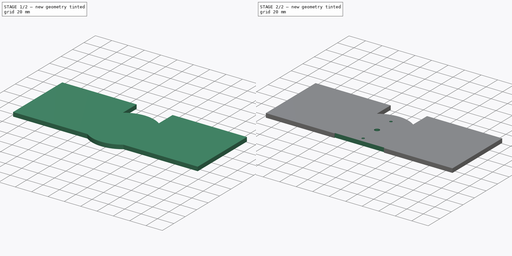
[diagram: build sequence overview — one tinted view per stage of 2, left to right]
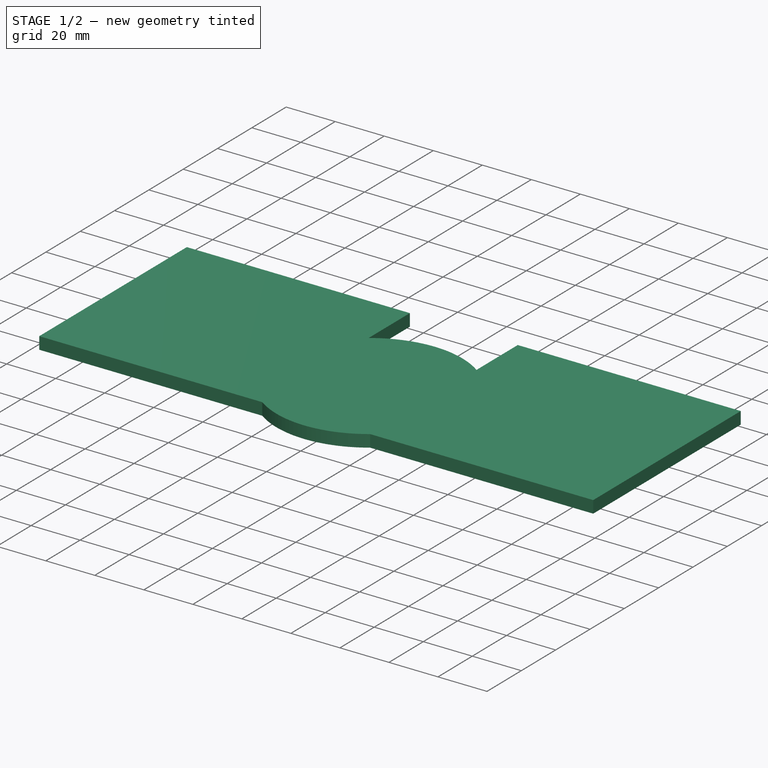
[diagram: stage 1 of 2 — iso view after this stage's code; geometry added in this stage tinted green]
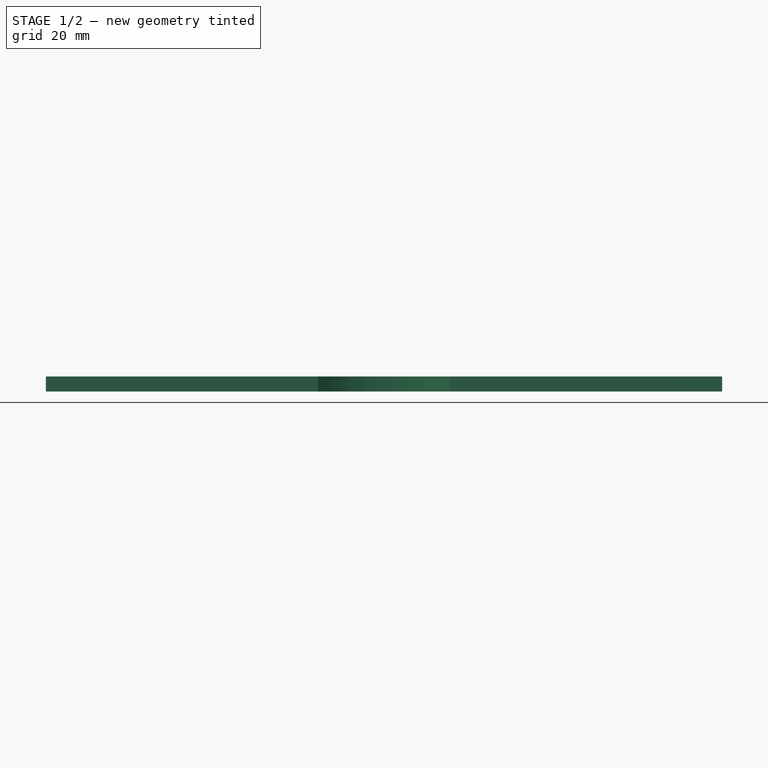
[diagram: stage 1 of 2 — front view after this stage's code; geometry added in this stage tinted green]
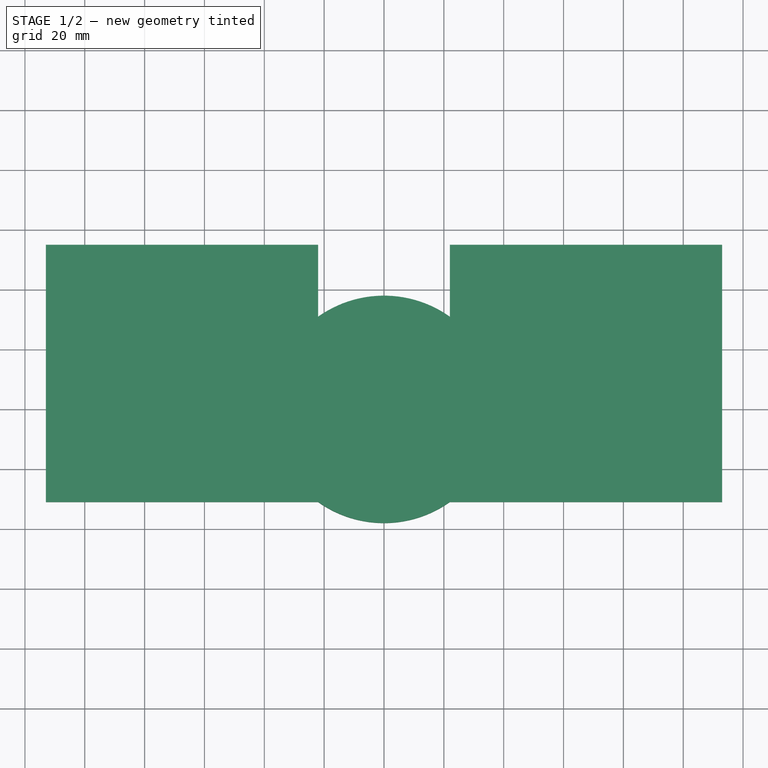
[diagram: stage 1 of 2 — top view after this stage's code; geometry added in this stage tinted green]
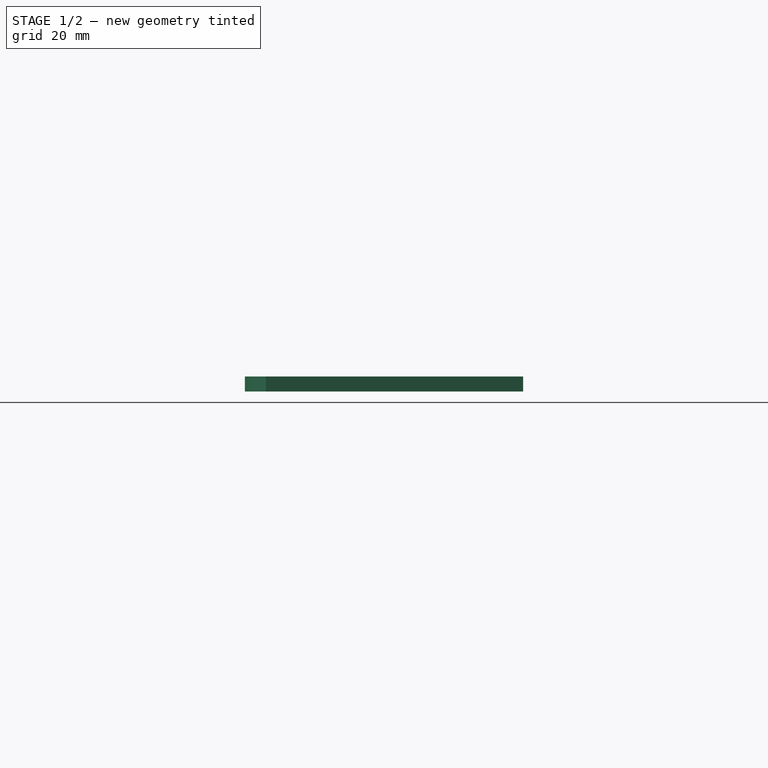
[diagram: stage 1 of 2 — right view after this stage's code; geometry added in this stage tinted green]
FCSTD DOCUMENT  (FreeCAD 0.21R33668 +26 (Git))
Label: base_link_1_2
License: All rights reserved
LicenseURL: https://en.wikipedia.org/wiki/All_rights_reserved
objects: Sketcher::SketchObject×2, PartDesign::Pad×1, PartDesign::Pocket×1, PartDesign::Body×1
note: 7 computed .brp shape members not serialized (recipe doc carries the construction recipe); baked Part::Feature solids carry a one-line shape summary decoded from their .brp

FEATURE [Sketcher::SketchObject] Sketch
  FullyConstrained = true
  MapMode = 5
  Support = -> [XY_Plane]
  sketch-geometry (12):
    g0: ArcOfCircle CenterX=2.1801e-12 CenterY=2.131e-12 CenterZ=0 NormalX=0 NormalY=0 NormalZ=1 AngleXU=0 Radius=38 StartAngle=4.09495 EndAngle=5.32983
    g1: LineSegment StartX=-113 StartY=55.0039 StartZ=0 EndX=-22 EndY=55.0039 EndZ=0
    g2: LineSegment StartX=-22 StartY=55.0039 StartZ=0 EndX=-22 EndY=30.9839 EndZ=0
    g3: LineSegment StartX=-22 StartY=-30.9839 StartZ=0 EndX=-113 EndY=-30.9839 EndZ=0
    g4: LineSegment StartX=-113 StartY=-30.9839 StartZ=0 EndX=-113 EndY=55.0039 EndZ=0
    g5: LineSegment StartX=22 StartY=55.0039 StartZ=0 EndX=113 EndY=55.0039 EndZ=0
    g6: LineSegment StartX=113 StartY=55.0039 StartZ=0 EndX=113 EndY=-30.9839 EndZ=0
    g7: LineSegment StartX=113 StartY=-30.9839 StartZ=0 EndX=22 EndY=-30.9839 EndZ=0
    g8: LineSegment StartX=22 StartY=-30.9839 StartZ=0 EndX=22 EndY=-30.9839 EndZ=0
    g9: LineSegment StartX=-22 StartY=-30.9839 StartZ=0 EndX=-22 EndY=-30.9839 EndZ=0
    g10: LineSegment StartX=22 StartY=30.9839 StartZ=0 EndX=22 EndY=55.0039 EndZ=0
    g11: ArcOfCircle CenterX=2.1801e-12 CenterY=2.131e-12 CenterZ=0 NormalX=0 NormalY=0 NormalZ=1 AngleXU=0 Radius=38 StartAngle=0.953359 EndAngle=2.18823
  constraints (36):
    c: Coincident(g0,g-1)
    c: Diameter(g0) = 76
    c: Coincident(g1,g2)
    c: Coincident(g9,g3)
    c: Coincident(g3,g4)
    c: Coincident(g4,g1)
    c: Horizontal(g1)
    c: Horizontal(g3)
    c: Vertical(g2)
    c: Vertical(g4)
    c: Coincident(g5,g6)
    c: Coincident(g6,g7)
    c: Coincident(g7,g8)
    c: Coincident(g10,g5)
    c: Horizontal(g5)
    c: Horizontal(g7)
    c: Vertical(g6)
    c: Vertical(g8)
    c: Horizontal(g1,g5)
    c: Horizontal(g9,g7)
    c: DistanceX(g1,g1) = 91
    c: DistanceX(g1,g0) = 22
    c: Equal(g1,g5)
    c: DistanceX(g0,g5) = 22
    c: Coincident(g2,g11)
    c: Coincident(g9,g0)
    c: Equal(g0,g11)
    c: Coincident(g0,g8)
    c: Coincident(g11,g10)
    c: Coincident(g0,g11)
    c: DistanceX(g7,g7) = 91
    c: DistanceX(g3,g3) = 91
    c: Vertical(g10,g5)
    c: Vertical(g0,g3)
    c: DistanceY(g10,g10) = 24.02
    c: DistanceY(g8,g8) = 0
FEATURE [PartDesign::Pad] Pad
  Direction = (0,0,1)
  Length = 5
  Length2 = 10
  Profile = -> Sketch
  ReferenceAxis = -> Sketch [N_Axis]
  Type = 0
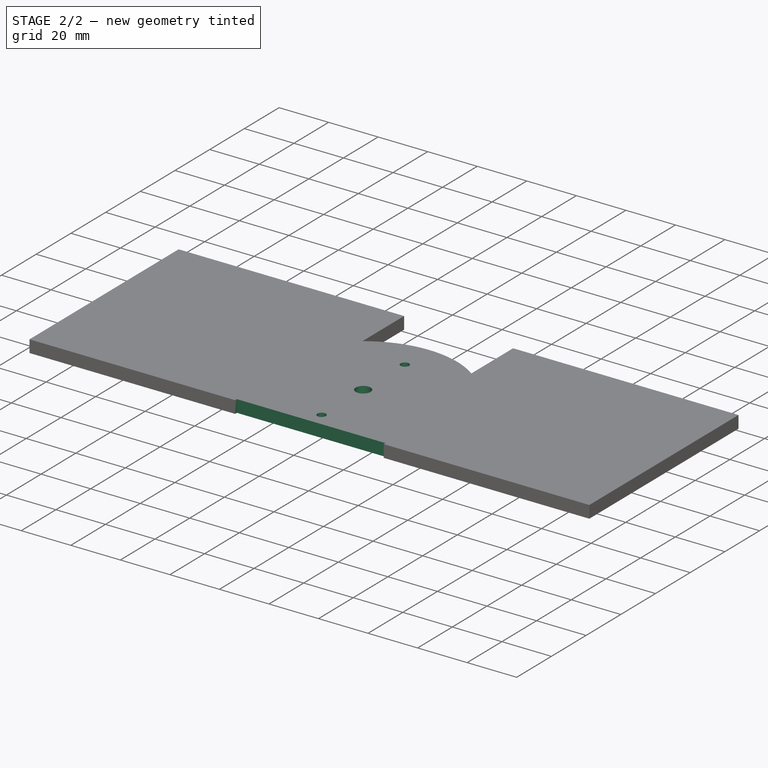
[diagram: stage 2 of 2 — iso view after this stage's code; geometry added in this stage tinted green]
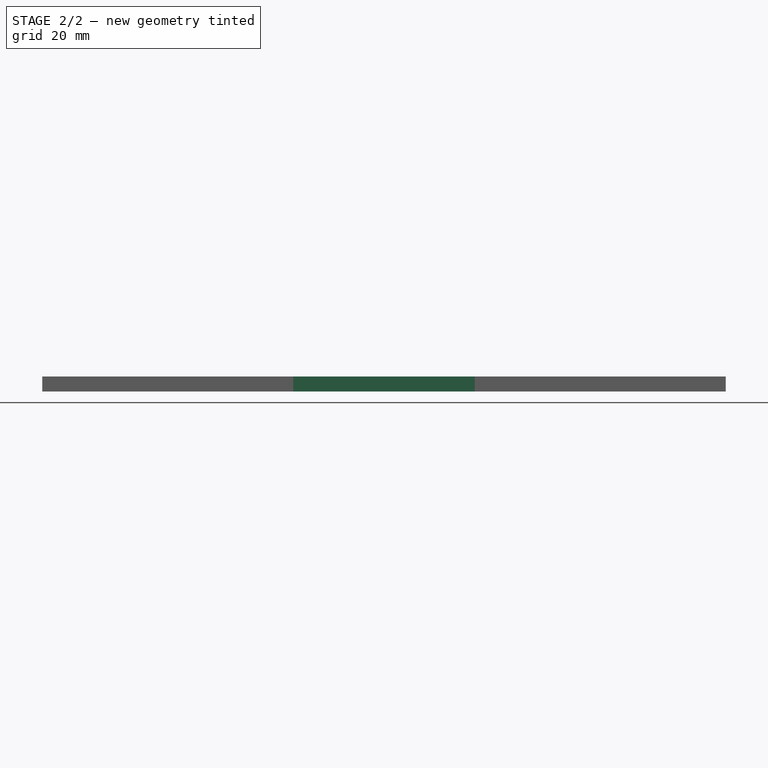
[diagram: stage 2 of 2 — front view after this stage's code; geometry added in this stage tinted green]
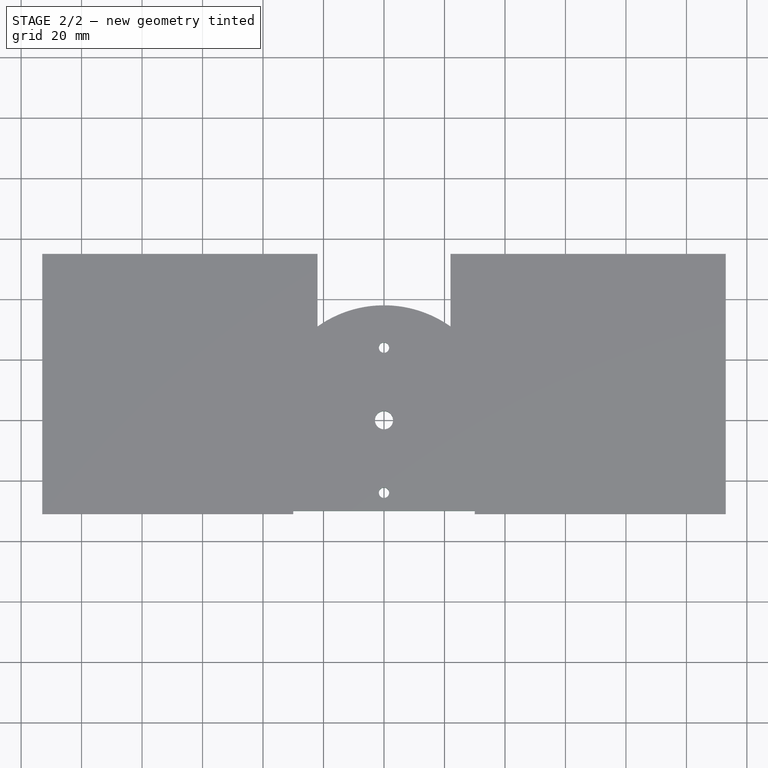
[diagram: stage 2 of 2 — top view after this stage's code; geometry added in this stage tinted green]
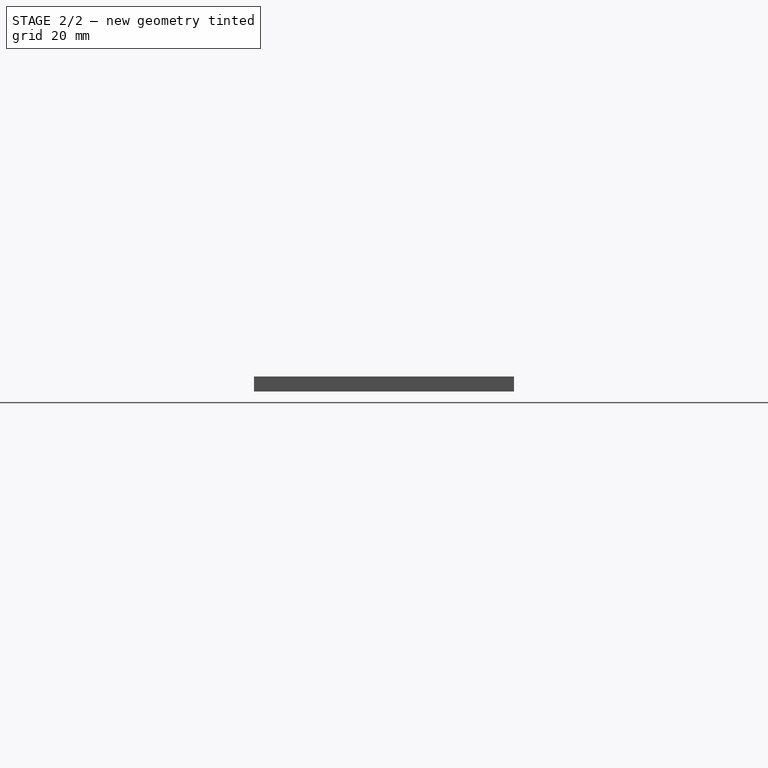
[diagram: stage 2 of 2 — right view after this stage's code; geometry added in this stage tinted green]
FEATURE [Sketcher::SketchObject] Sketch001
  ExternalGeometry = -> [Pad]
  FullyConstrained = false
  MapMode = 5
  Placement = pos=(0,0,5) rot=(0,0,1;0rad)
  Support = -> [Pad]
  sketch-geometry (7):
    g0: Circle CenterX=0 CenterY=0 CenterZ=0 NormalX=0 NormalY=0 NormalZ=1 AngleXU=0 Radius=3
    g1: Circle CenterX=0 CenterY=24 CenterZ=0 NormalX=0 NormalY=0 NormalZ=1 AngleXU=0 Radius=1.7
    g2: Circle CenterX=0 CenterY=-24 CenterZ=0 NormalX=0 NormalY=0 NormalZ=1 AngleXU=0 Radius=1.7
    g3: LineSegment StartX=-30 StartY=-29.9839 StartZ=0 EndX=30 EndY=-29.9839 EndZ=0
    g4: LineSegment StartX=30 StartY=-29.9839 StartZ=0 EndX=30 EndY=-51.3046 EndZ=0
    g5: LineSegment StartX=30 StartY=-51.3046 StartZ=0 EndX=-30 EndY=-51.3046 EndZ=0
    g6: LineSegment StartX=-30 StartY=-51.3046 StartZ=0 EndX=-30 EndY=-29.9839 EndZ=0
  constraints (19):
    c: Coincident(g0,g-1)
    c: Diameter(g0) = 6
    c: PointOnObject(g1,g-2)
    c: PointOnObject(g2,g-2)
    c: Diameter(g1) = 3.4
    c: Diameter(g2) = 3.4
    c: DistanceY(g0,g1) = 24
    c: DistanceY(g2,g0) = 24
    c: Coincident(g3,g4)
    c: Coincident(g4,g5)
    c: Coincident(g5,g6)
    c: Coincident(g6,g3)
    c: Horizontal(g3)
    c: Horizontal(g5)
    c: Vertical(g4)
    c: Vertical(g6)
    c: DistanceY(g-3,g3) = 1
    c: DistanceX(g0,g3) = 30
    c: DistanceX(g3,g3) = 60
FEATURE [PartDesign::Pocket] Pocket
  BaseFeature = -> Pad
  Direction = (0,0,-1)
  Length = 5
  Length2 = 5
  Profile = -> Sketch001
  ReferenceAxis = -> Sketch001 [N_Axis]
  Type = 1
FEATURE [PartDesign::Body] Body
  Group = -> [Sketch,Pad,Sketch001,Pocket]
  Origin = -> Origin
  Tip = -> Pocket
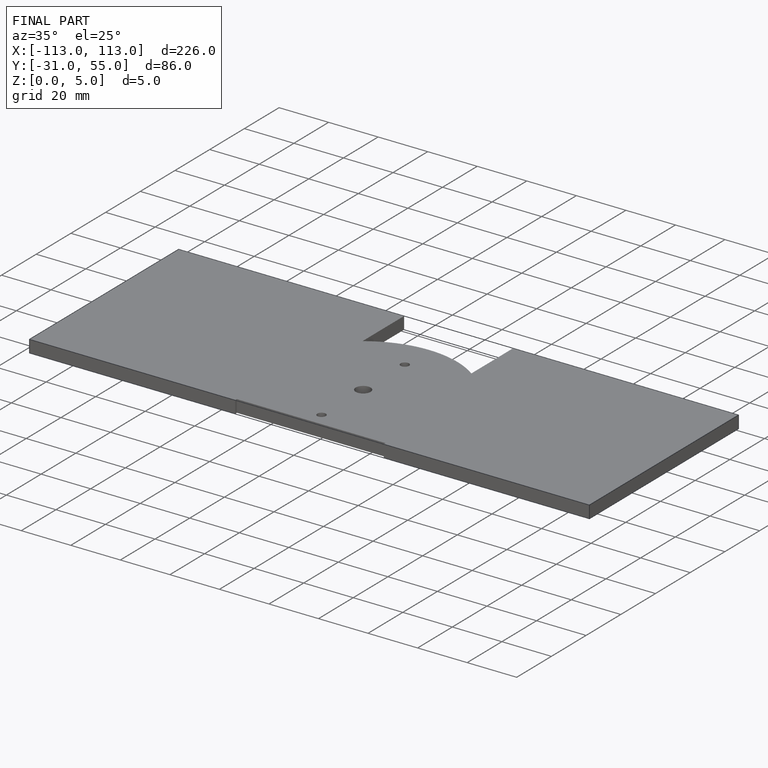
[diagram: finished part — iso view with bounding-box wireframe]
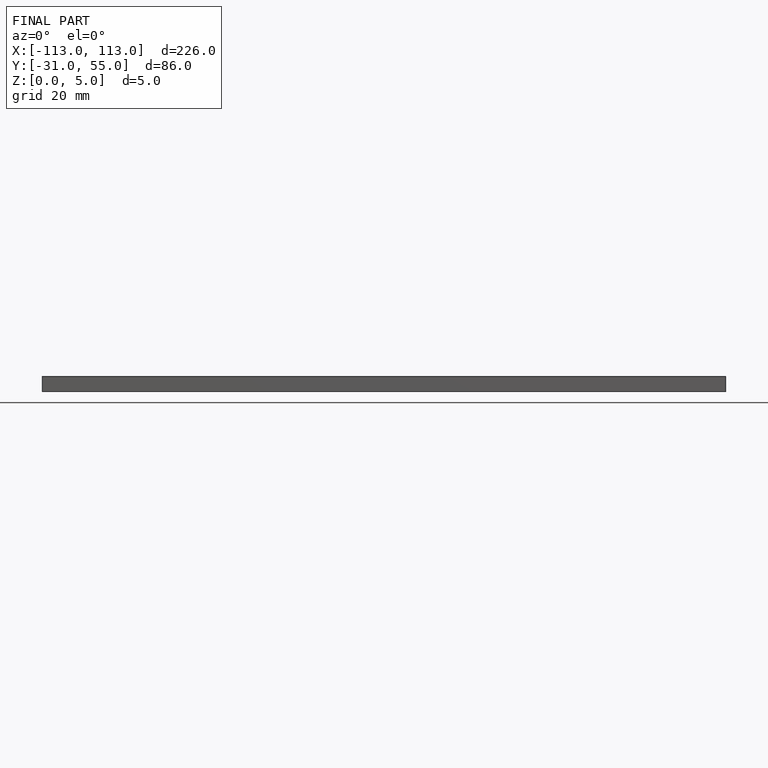
[diagram: finished part — front view with bounding-box wireframe]
